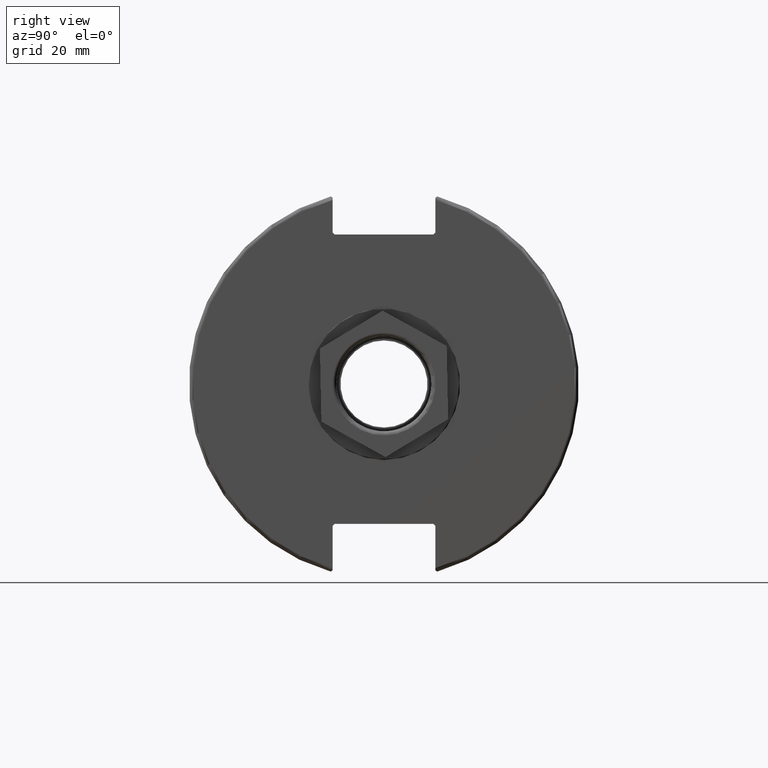
[diagram: clean part render]
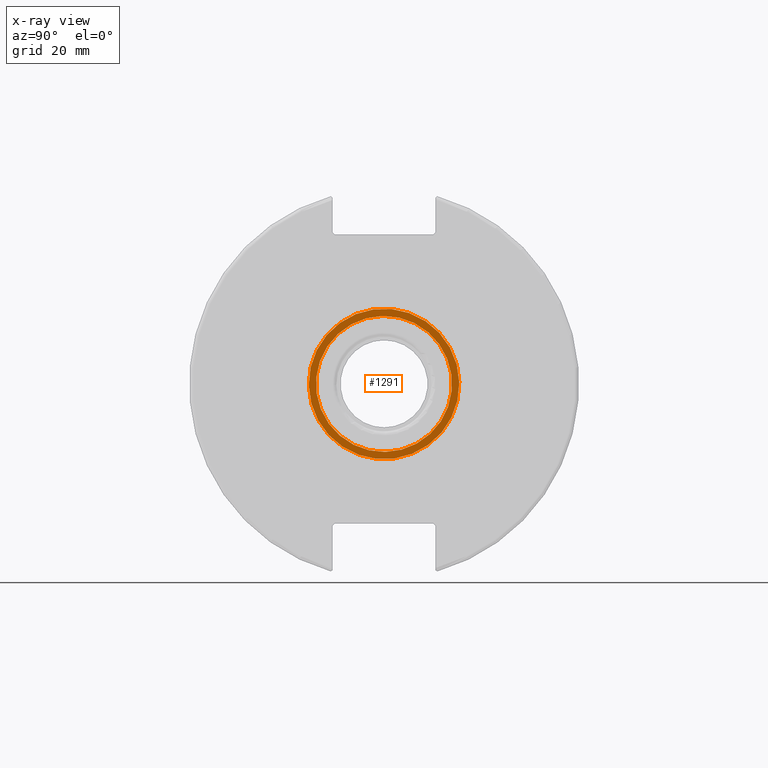
[diagram: x-ray — body ghosted, one internal face saturated and labeled with its STEP entity id]
A machine part, right view, then the same camera in x-ray: the body is ghosted and one INTERNAL B-rep face — a face not visible from any outside direction — is saturated and labeled: STEP entity #1291.
In plain terms, the highlighted planar face has unit normal (-1, 0, 0).
Its self-contained STEP definition (entity closure, byte-faithful):
#76=FACE_BOUND('',#276,.T.);
#109=PLANE('',#1486);
#191=FACE_OUTER_BOUND('',#275,.T.);
#275=EDGE_LOOP('',(#1154));
#276=EDGE_LOOP('',(#1155));
#525=CIRCLE('',#1482,17.1593961579806);
#529=CIRCLE('',#1487,19.);
#642=VERTEX_POINT('',#2337);
#645=VERTEX_POINT('',#2345);
#815=EDGE_CURVE('',#642,#642,#525,.T.);
#819=EDGE_CURVE('',#645,#645,#529,.T.);
#1154=ORIENTED_EDGE('',*,*,#819,.F.);
#1155=ORIENTED_EDGE('',*,*,#815,.F.);
#1291=ADVANCED_FACE('',(#191,#76),#109,.T.);
#1482=AXIS2_PLACEMENT_3D('',#2338,#1811,#1812);
#1486=AXIS2_PLACEMENT_3D('',#2344,#1819,#1820);
#1487=AXIS2_PLACEMENT_3D('',#2346,#1821,#1822);
#1811=DIRECTION('center_axis',(-1.,0.,0.));
#1812=DIRECTION('ref_axis',(0.,-1.,1.22464679914735E-16));
#1819=DIRECTION('center_axis',(-1.,0.,0.));
#1820=DIRECTION('ref_axis',(0.,0.,1.));
#1821=DIRECTION('center_axis',(1.,0.,0.));
#1822=DIRECTION('ref_axis',(0.,-1.,0.));
#2337=CARTESIAN_POINT('',(-11.2,-2.10141995801723E-15,17.1593961579806));
#2338=CARTESIAN_POINT('Origin',(-11.2,0.,0.));
#2344=CARTESIAN_POINT('Origin',(-11.2,20.,0.));
#2345=CARTESIAN_POINT('',(-11.2,19.,2.32682891837997E-15));
#2346=CARTESIAN_POINT('Origin',(-11.2,0.,0.));